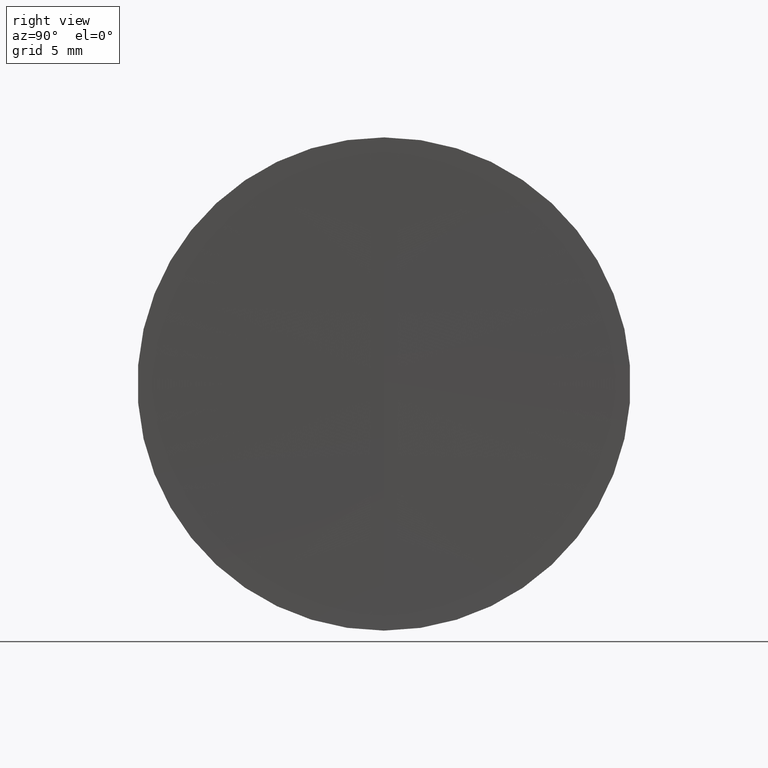
[diagram: clean part render]
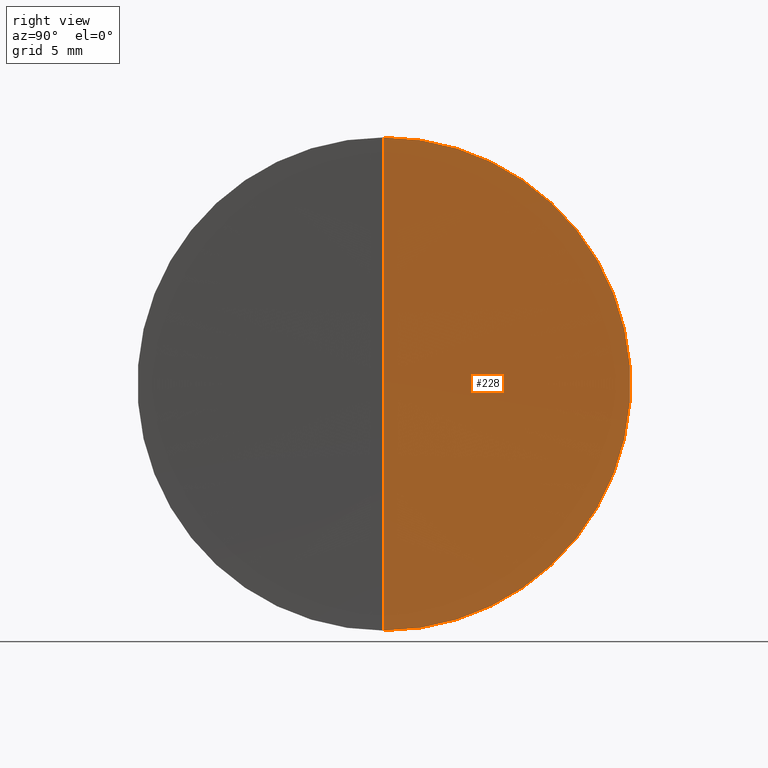
[diagram: same view with one face highlighted and labeled with its STEP entity id]
A machine part, right view. The second image highlights one B-rep face of the part: STEP entity #228.
In plain terms, the highlighted spherical surface has radius 900 mm.
Its self-contained STEP definition (entity closure, byte-faithful):
#3 = VERTEX_POINT ( 'NONE', #173 ) ;
#4 = EDGE_LOOP ( 'NONE', ( #311, #182, #58 ) ) ;
#13 = CARTESIAN_POINT ( 'NONE',  ( 42.35364623093715200, 0.0000000000000000000, -12.69999999999743100 ) ) ;
#15 = CARTESIAN_POINT ( 'NONE',  ( 942.2640362142952900, 0.0000000000000000000, 0.0000000000000000000 ) ) ;
#23 = CARTESIAN_POINT ( 'NONE',  ( 942.2640362142952900, 0.0000000000000000000, 0.0000000000000000000 ) ) ;
#33 = DIRECTION ( 'NONE',  ( 0.0000000000000000000, 1.000000000000000000, -0.0000000000000000000 ) ) ;
#34 = DIRECTION ( 'NONE',  ( 0.0000000000000000000, -1.000000000000000000, -1.224646799147353200E-016 ) ) ;
#40 = CIRCLE ( 'NONE', #190, 12.69999999999999200 ) ;
#47 = DIRECTION ( 'NONE',  ( 0.0000000000000000000, 0.0000000000000000000, 1.000000000000000000 ) ) ;
#58 = ORIENTED_EDGE ( 'NONE', *, *, #142, .F. ) ;
#62 = DIRECTION ( 'NONE',  ( 0.0000000000000000000, 1.224646799147353500E-016, -1.000000000000000000 ) ) ;
#110 = FACE_OUTER_BOUND ( 'NONE', #4, .T. ) ;
#118 = CIRCLE ( 'NONE', #251, 899.9999999999997700 ) ;
#129 = VERTEX_POINT ( 'NONE', #13 ) ;
#142 = EDGE_CURVE ( 'NONE', #129, #238, #179, .T. ) ;
#159 = AXIS2_PLACEMENT_3D ( 'NONE', #269, #33, #346 ) ;
#160 = CARTESIAN_POINT ( 'NONE',  ( 42.26403621429553000, 0.0000000000000000000, -5.510910596163088600E-014 ) ) ;
#173 = CARTESIAN_POINT ( 'NONE',  ( 42.35364623093715200, -1.555301434916824100E-015, 12.69999999999743100 ) ) ;
#179 = CIRCLE ( 'NONE', #159, 899.9999999999997700 ) ;
#182 = ORIENTED_EDGE ( 'NONE', *, *, #219, .T. ) ;
#190 = AXIS2_PLACEMENT_3D ( 'NONE', #266, #235, #47 ) ;
#219 = EDGE_CURVE ( 'NONE', #3, #238, #118, .T. ) ;
#226 = SPHERICAL_SURFACE ( 'NONE', #315, 899.9999999999997700 ) ;
#228 = ADVANCED_FACE ( 'NONE', ( #110 ), #226, .F. ) ;
#235 = DIRECTION ( 'NONE',  ( -1.000000000000000000, -0.0000000000000000000, -0.0000000000000000000 ) ) ;
#238 = VERTEX_POINT ( 'NONE', #160 ) ;
#243 = DIRECTION ( 'NONE',  ( 0.0000000000000000000, 0.0000000000000000000, -1.000000000000000000 ) ) ;
#251 = AXIS2_PLACEMENT_3D ( 'NONE', #15, #34, #62 ) ;
#266 = CARTESIAN_POINT ( 'NONE',  ( 42.35364623093713000, 0.0000000000000000000, 0.0000000000000000000 ) ) ;
#269 = CARTESIAN_POINT ( 'NONE',  ( 942.2640362142952900, 0.0000000000000000000, 0.0000000000000000000 ) ) ;
#271 = DIRECTION ( 'NONE',  ( -0.0000000000000000000, -1.000000000000000000, -0.0000000000000000000 ) ) ;
#311 = ORIENTED_EDGE ( 'NONE', *, *, #325, .F. ) ;
#315 = AXIS2_PLACEMENT_3D ( 'NONE', #23, #271, #243 ) ;
#325 = EDGE_CURVE ( 'NONE', #3, #129, #40, .T. ) ;
#346 = DIRECTION ( 'NONE',  ( 0.0000000000000000000, 0.0000000000000000000, 1.000000000000000000 ) ) ;